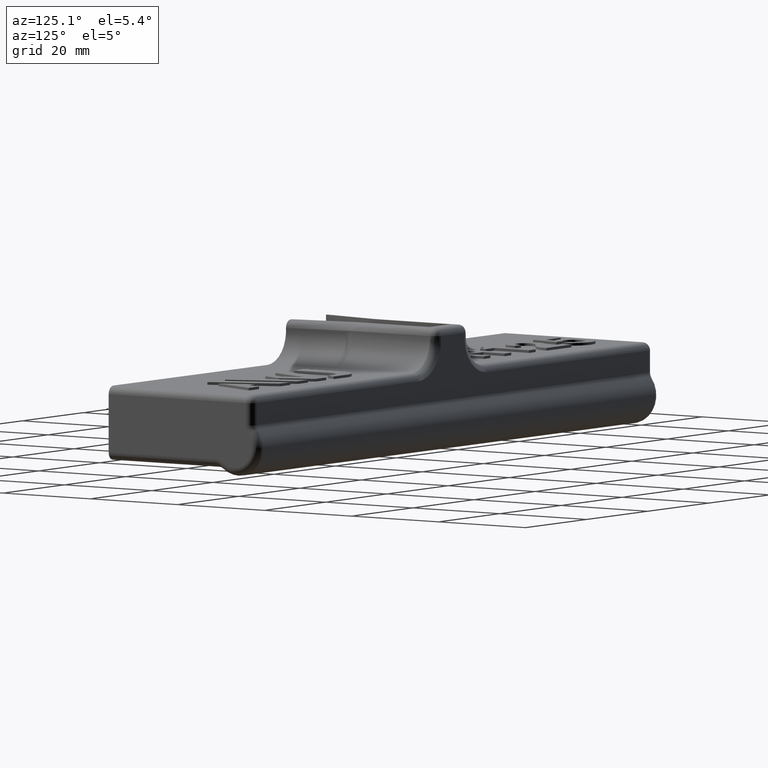
[diagram: clean part render]
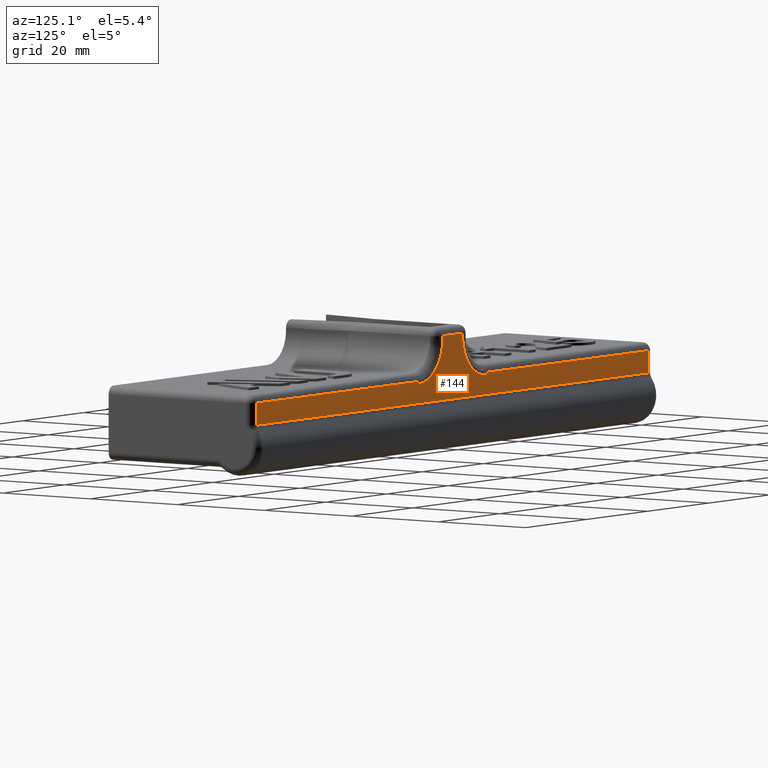
[diagram: same view with one face highlighted and labeled with its STEP entity id]
A machine part, auxiliary view. The second image highlights one B-rep face of the part: STEP entity #144.
In plain terms, the highlighted planar face has unit normal (-0, -1, 0).
Its self-contained STEP definition (entity closure, byte-faithful):
#144=ADVANCED_FACE('',(#306),#307,.F.);
#306=FACE_OUTER_BOUND('',#849,.T.);
#307=PLANE('',#850);
#849=EDGE_LOOP('',(#1944,#1945,#1946,#1947,#1948,#1949,#1950,#1951,#1952,#1953));
#850=AXIS2_PLACEMENT_3D('',#1954,#1955,#1956);
#1944=ORIENTED_EDGE('',*,*,#2964,.F.);
#1945=ORIENTED_EDGE('',*,*,#2974,.T.);
#1946=ORIENTED_EDGE('',*,*,#2975,.T.);
#1947=ORIENTED_EDGE('',*,*,#2976,.F.);
#1948=ORIENTED_EDGE('',*,*,#2977,.T.);
#1949=ORIENTED_EDGE('',*,*,#2978,.T.);
#1950=ORIENTED_EDGE('',*,*,#2979,.T.);
#1951=ORIENTED_EDGE('',*,*,#2980,.T.);
#1952=ORIENTED_EDGE('',*,*,#2981,.T.);
#1953=ORIENTED_EDGE('',*,*,#2965,.F.);
#1954=CARTESIAN_POINT('',(11.25,33.0,12.5));
#1955=DIRECTION('',(-1.22464679914735E-16,-1.0,6.12323399573677E-17));
#1956=DIRECTION('',(0.0,-6.12323399573677E-17,-1.0));
#2964=EDGE_CURVE('',#3357,#3359,#3360,.F.);
#2965=EDGE_CURVE('',#3359,#3354,#3361,.F.);
#2974=EDGE_CURVE('',#3357,#3378,#3379,.T.);
#2975=EDGE_CURVE('',#3378,#3380,#3381,.F.);
#2976=EDGE_CURVE('',#3371,#3380,#3382,.F.);
#2977=EDGE_CURVE('',#3371,#3383,#3384,.T.);
#2978=EDGE_CURVE('',#3383,#3385,#3386,.T.);
#2979=EDGE_CURVE('',#3385,#3387,#3388,.T.);
#2980=EDGE_CURVE('',#3387,#3389,#3390,.T.);
#2981=EDGE_CURVE('',#3389,#3354,#3391,.T.);
#3354=VERTEX_POINT('',#4131);
#3357=VERTEX_POINT('',#4159);
#3359=VERTEX_POINT('',#4162);
#3360=B_SPLINE_CURVE_WITH_KNOTS('',3,(#4163,#4164,#4165,#4166,#4167,#4168,#4169,#4170,#4171,#4172,#4173,#4174,#4175,#4176,#4177,#4178),.UNSPECIFIED.,.F.,.F.,(4,2,2,2,2,2,2,4),(0.0,0.25,0.5,0.75,0.78125,0.796875,0.8125,0.85),.UNSPECIFIED.);
#3361=B_SPLINE_CURVE_WITH_KNOTS('',1,(#4179,#4180),.UNSPECIFIED.,.F.,.F.,(2,2),(0.75,1.0),.UNSPECIFIED.);
#3371=VERTEX_POINT('',#4229);
#3378=VERTEX_POINT('',#4281);
#3379=LINE('',#4282,#4283);
#3380=VERTEX_POINT('',#4284);
#3381=B_SPLINE_CURVE_WITH_KNOTS('',2,(#4285,#4286,#4287,#4288,#4289,#4290,#4291,#4292,#4293,#4294,#4295,#4296,#4297),.UNSPECIFIED.,.F.,.F.,(3,2,2,2,2,2,3),(0.0,0.125,0.25,0.5,0.75,0.831632653061224,0.85),.UNSPECIFIED.);
#3382=B_SPLINE_CURVE_WITH_KNOTS('',1,(#4298,#4299),.UNSPECIFIED.,.F.,.F.,(2,2),(0.0,0.249999999999993),.UNSPECIFIED.);
#3383=VERTEX_POINT('',#4300);
#3384=LINE('',#4301,#4302);
#3385=VERTEX_POINT('',#4303);
#3386=LINE('',#4304,#4305);
#3387=VERTEX_POINT('',#4306);
#3388=LINE('',#4307,#4308);
#3389=VERTEX_POINT('',#4309);
#3390=LINE('',#4310,#4311);
#3391=LINE('',#4312,#4313);
#4131=CARTESIAN_POINT('',(-11.25,33.0,5.0));
#4159=CARTESIAN_POINT('',(-3.25,33.0,13.0));
#4162=CARTESIAN_POINT('',(-11.25,33.0,4.5));
#4163=CARTESIAN_POINT('',(-11.25,33.0,4.5));
#4164=CARTESIAN_POINT('',(-9.94169182219247,33.0,4.5));
#4165=CARTESIAN_POINT('',(-8.63175585848943,33.0,4.82790283594649));
#4166=CARTESIAN_POINT('',(-6.32447309211248,33.0,6.06260918011364));
#4167=CARTESIAN_POINT('',(-5.32463314466433,33.0,6.96901356628626));
#4168=CARTESIAN_POINT('',(-3.87249511307216,33.0,9.14229171255276));
#4169=CARTESIAN_POINT('',(-3.417708835414,33.0,10.4128893173985));
#4170=CARTESIAN_POINT('',(-3.27271825515926,33.0,11.8777253716413));
#4171=CARTESIAN_POINT('',(-3.26158032697304,33.0,12.0410996776325));
#4172=CARTESIAN_POINT('',(-3.25244540345478,33.0,12.2867422308724));
#4173=CARTESIAN_POINT('',(-3.25066265531877,33.0,12.3687198374984));
#4174=CARTESIAN_POINT('',(-3.24964325532948,33.0,12.5328102072579));
#4175=CARTESIAN_POINT('',(-3.25,33.0,12.5729166666665));
#4176=CARTESIAN_POINT('',(-3.25,33.0,12.7499999999999));
#4177=CARTESIAN_POINT('',(-3.25,33.0,12.8749999999999));
#4178=CARTESIAN_POINT('',(-3.25,33.0,12.9999999999999));
#4179=CARTESIAN_POINT('',(-11.25,33.0,5.0));
#4180=CARTESIAN_POINT('',(-11.25,33.0,4.5));
#4229=CARTESIAN_POINT('',(11.25,33.0,5.0));
#4281=CARTESIAN_POINT('',(3.25,33.0,13.0));
#4282=CARTESIAN_POINT('',(11.25,33.0,13.0));
#4283=VECTOR('',#5221,1000.0);
#4284=CARTESIAN_POINT('',(11.25,33.0,4.5));
#4285=CARTESIAN_POINT('',(11.25,33.0,4.5));
#4286=CARTESIAN_POINT('',(10.266303840171,33.0,4.5));
#4287=CARTESIAN_POINT('',(9.30679908097317,33.0,4.73993917851621));
#4288=CARTESIAN_POINT('',(8.34853645764085,33.0,4.97956774152339));
#4289=CARTESIAN_POINT('',(7.47811447530087,33.0,5.44525600803009));
#4290=CARTESIAN_POINT('',(5.71143858987547,33.0,6.39045298978738));
#4291=CARTESIAN_POINT('',(4.59856412886816,33.0,8.0556526394196));
#4292=CARTESIAN_POINT('',(3.4865178374787,33.0,9.71961309469001));
#4293=CARTESIAN_POINT('',(3.28882831963196,33.0,11.7149658100589));
#4294=CARTESIAN_POINT('',(3.25,33.0,12.1068742625391));
#4295=CARTESIAN_POINT('',(3.25,33.0,12.8163265306123));
#4296=CARTESIAN_POINT('',(3.25,33.0,12.9081632653061));
#4297=CARTESIAN_POINT('',(3.25,33.0,13.0));
#4298=CARTESIAN_POINT('',(11.25,33.0,4.5));
#4299=CARTESIAN_POINT('',(11.25,33.0,4.99999999999999));
#4300=CARTESIAN_POINT('',(64.0,33.0,5.0));
#4301=CARTESIAN_POINT('',(65.5,33.0,5.0));
#4302=VECTOR('',#5222,1000.0);
#4303=CARTESIAN_POINT('',(64.0,33.0,0.812607778933716));
#4304=CARTESIAN_POINT('',(64.0,33.0,0.270247611013616));
#4305=VECTOR('',#5223,1000.0);
#4306=CARTESIAN_POINT('',(-64.0,33.0,0.812607778933702));
#4307=CARTESIAN_POINT('',(11.25,33.0,0.812607778933709));
#4308=VECTOR('',#5224,1000.0);
#4309=CARTESIAN_POINT('',(-64.0,33.0,5.0));
#4310=CARTESIAN_POINT('',(-64.0,33.0,6.5));
#4311=VECTOR('',#5225,1000.0);
#4312=CARTESIAN_POINT('',(-11.25,33.0,5.0));
#4313=VECTOR('',#5226,1000.0);
#5221=DIRECTION('',(1.0,-1.22464679914735E-16,-1.18057268536456E-15));
#5222=DIRECTION('',(1.0,-1.22464679914735E-16,7.49879891330929E-33));
#5223=DIRECTION('',(5.78241158658936E-17,-6.12323399573677E-17,-1.0));
#5224=DIRECTION('',(-1.0,1.22464679914735E-16,-8.67361737988404E-17));
#5225=DIRECTION('',(-5.78241158658936E-17,6.12323399573677E-17,1.0));
#5226=DIRECTION('',(1.0,-1.22464679914735E-16,7.49879891330929E-33));